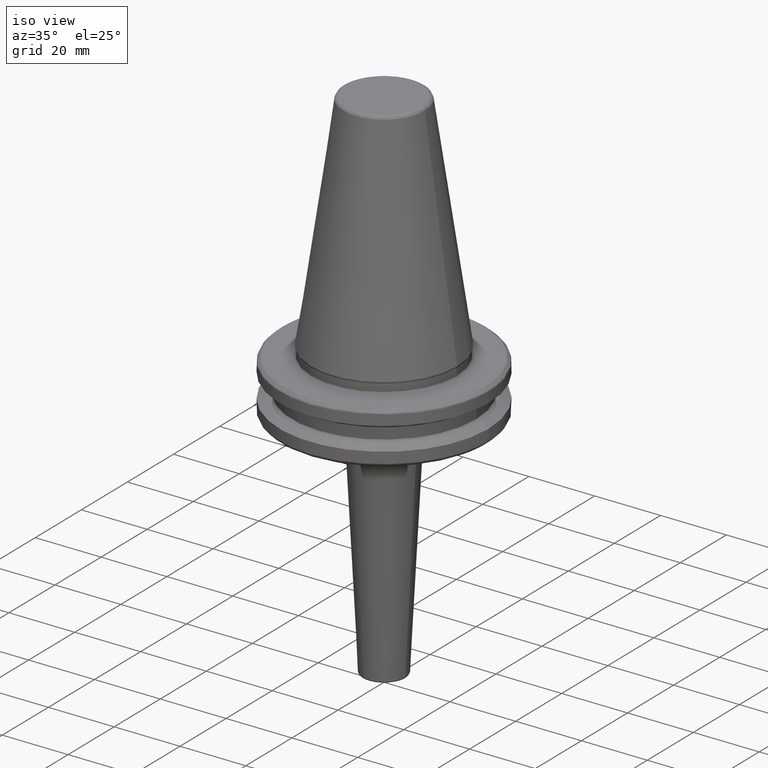
[diagram: clean part render]
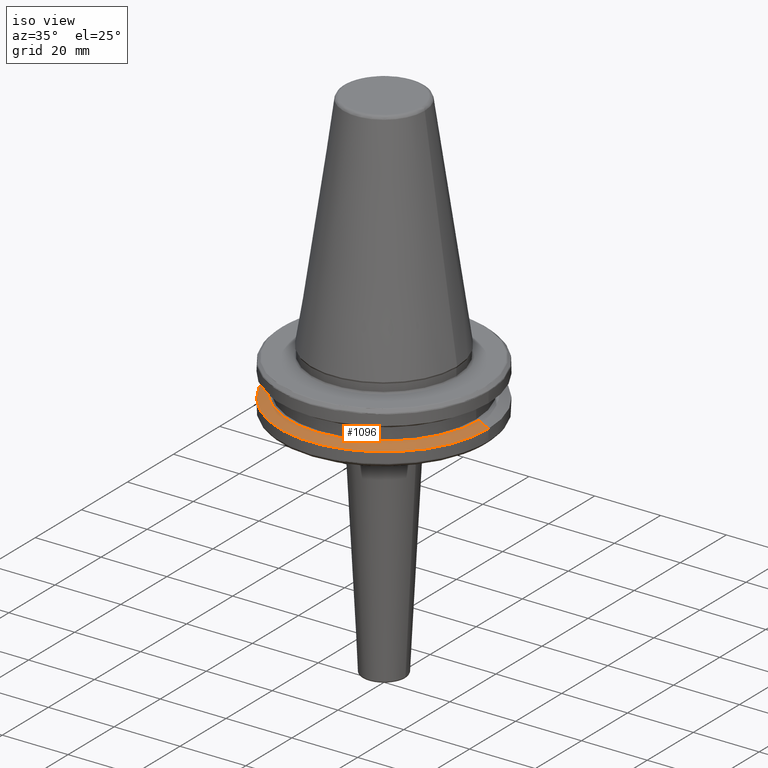
[diagram: same view with one face highlighted and labeled with its STEP entity id]
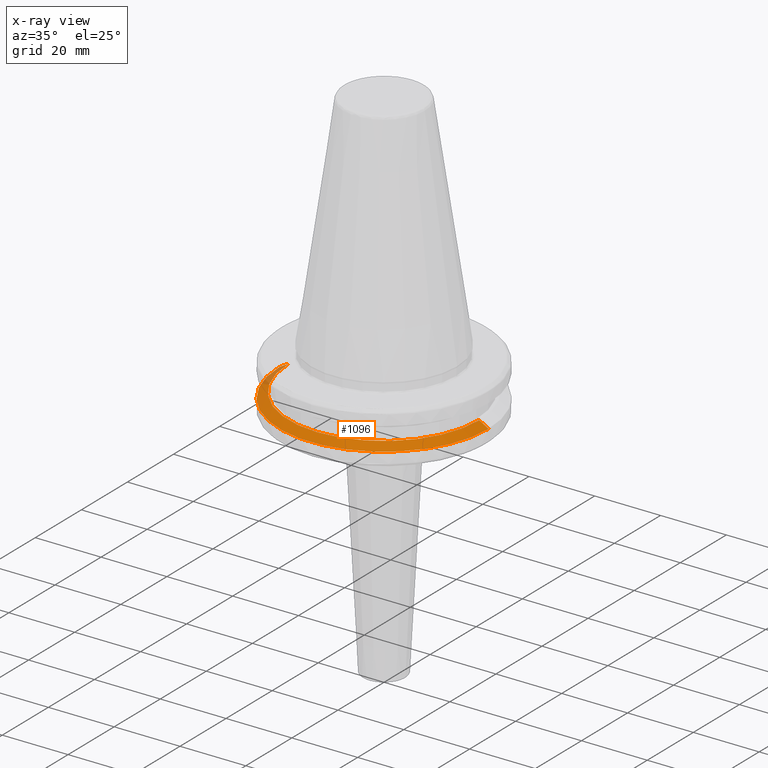
[diagram: x-ray of the same camera — body ghosted, the highlighted face saturated]
A machine part, iso view. The second image highlights one B-rep face of the part: STEP entity #1096.
The next image is the same camera in x-ray: the body ghosted, the highlighted face saturated — about 4% of this face is hidden behind the body in this view.
In plain terms, the highlighted conical surface has half-angle 60 deg.
Its self-contained STEP definition (entity closure, byte-faithful):
#46 = CONICAL_SURFACE ( 'NONE', #2943, 31.75000000000000700, 1.047197551196604100 ) ;
#278 = EDGE_CURVE ( 'NONE', #1660, #1598, #1885, .T. ) ;
#293 = VERTEX_POINT ( 'NONE', #586 ) ;
#320 = ORIENTED_EDGE ( 'NONE', *, *, #1311, .T. ) ;
#326 = ORIENTED_EDGE ( 'NONE', *, *, #1679, .T. ) ;
#447 = CARTESIAN_POINT ( 'NONE',  ( -28.94089653438084400, 0.0000000000000000000, -13.00000000000000700 ) ) ;
#448 = LINE ( 'NONE', #757, #2837 ) ;
#586 = CARTESIAN_POINT ( 'NONE',  ( -31.75000000000000700, 3.888253587292847300E-015, -14.62183664205671500 ) ) ;
#634 = AXIS2_PLACEMENT_3D ( 'NONE', #2543, #1170, #2768 ) ;
#639 = CIRCLE ( 'NONE', #634, 31.75000000000000700 ) ;
#703 = DIRECTION ( 'NONE',  ( 0.8660254037844418200, 1.060575238724910700E-016, -0.4999999999999945000 ) ) ;
#757 = CARTESIAN_POINT ( 'NONE',  ( -31.75000000000000700, 0.0000000000000000000, -14.62183664205671700 ) ) ;
#832 = CARTESIAN_POINT ( 'NONE',  ( 31.75000000000000700, 0.0000000000000000000, -14.62183664205671500 ) ) ;
#937 = VERTEX_POINT ( 'NONE', #832 ) ;
#1082 = DIRECTION ( 'NONE',  ( -1.000000000000000000, 0.0000000000000000000, 0.0000000000000000000 ) ) ;
#1096 = ADVANCED_FACE ( 'NONE', ( #2505 ), #46, .T. ) ;
#1126 = EDGE_CURVE ( 'NONE', #1660, #937, #2451, .T. ) ;
#1170 = DIRECTION ( 'NONE',  ( -0.0000000000000000000, -0.0000000000000000000, 1.000000000000000000 ) ) ;
#1202 = AXIS2_PLACEMENT_3D ( 'NONE', #2904, #2434, #1082 ) ;
#1311 = EDGE_CURVE ( 'NONE', #1598, #293, #448, .T. ) ;
#1413 = CARTESIAN_POINT ( 'NONE',  ( 31.75000000000000700, 3.888253587292847300E-015, -14.62183664205671700 ) ) ;
#1598 = VERTEX_POINT ( 'NONE', #447 ) ;
#1660 = VERTEX_POINT ( 'NONE', #1857 ) ;
#1679 = EDGE_CURVE ( 'NONE', #293, #937, #639, .T. ) ;
#1815 = DIRECTION ( 'NONE',  ( -1.000000000000000000, 0.0000000000000000000, 0.0000000000000000000 ) ) ;
#1857 = CARTESIAN_POINT ( 'NONE',  ( 28.94089653438084400, 3.716245608910634800E-015, -13.00000000000000700 ) ) ;
#1885 = CIRCLE ( 'NONE', #1202, 28.94089653438084400 ) ;
#1912 = VECTOR ( 'NONE', #703, 1000.000000000000000 ) ;
#1960 = EDGE_LOOP ( 'NONE', ( #2892, #2289, #320, #326 ) ) ;
#2045 = DIRECTION ( 'NONE',  ( 0.0000000000000000000, 0.0000000000000000000, -1.000000000000000000 ) ) ;
#2146 = DIRECTION ( 'NONE',  ( -0.8660254037844418200, 0.0000000000000000000, -0.4999999999999945000 ) ) ;
#2289 = ORIENTED_EDGE ( 'NONE', *, *, #278, .T. ) ;
#2434 = DIRECTION ( 'NONE',  ( 0.0000000000000000000, 0.0000000000000000000, -1.000000000000000000 ) ) ;
#2451 = LINE ( 'NONE', #1413, #1912 ) ;
#2473 = CARTESIAN_POINT ( 'NONE',  ( 0.0000000000000000000, 0.0000000000000000000, -14.62183664205671700 ) ) ;
#2505 = FACE_OUTER_BOUND ( 'NONE', #1960, .T. ) ;
#2543 = CARTESIAN_POINT ( 'NONE',  ( 0.0000000000000000000, 0.0000000000000000000, -14.62183664205671500 ) ) ;
#2768 = DIRECTION ( 'NONE',  ( -1.000000000000000000, 0.0000000000000000000, 0.0000000000000000000 ) ) ;
#2837 = VECTOR ( 'NONE', #2146, 1000.000000000000000 ) ;
#2892 = ORIENTED_EDGE ( 'NONE', *, *, #1126, .F. ) ;
#2904 = CARTESIAN_POINT ( 'NONE',  ( 0.0000000000000000000, 0.0000000000000000000, -13.00000000000000700 ) ) ;
#2943 = AXIS2_PLACEMENT_3D ( 'NONE', #2473, #2045, #1815 ) ;